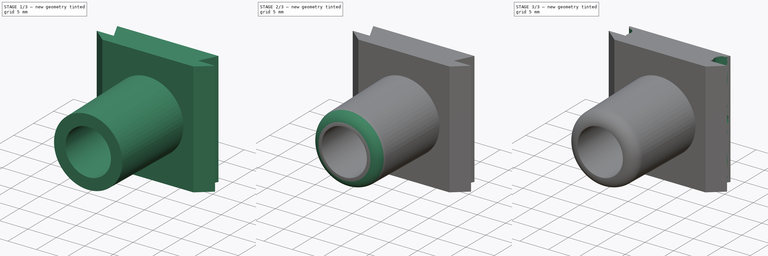
[diagram: build sequence overview — one tinted view per stage of 3, left to right]
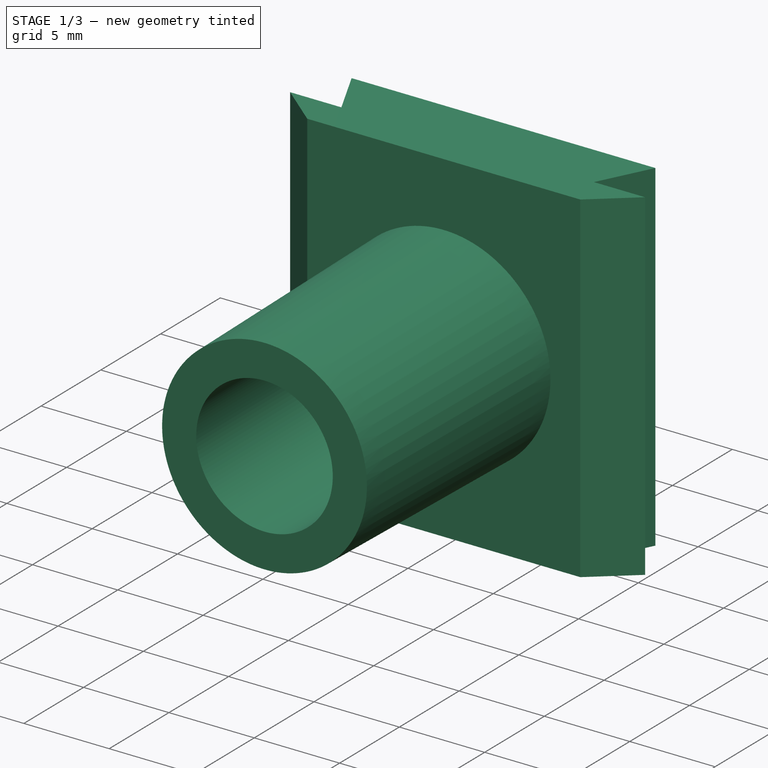
[diagram: stage 1 of 3 — iso view after this stage's code; geometry added in this stage tinted green]
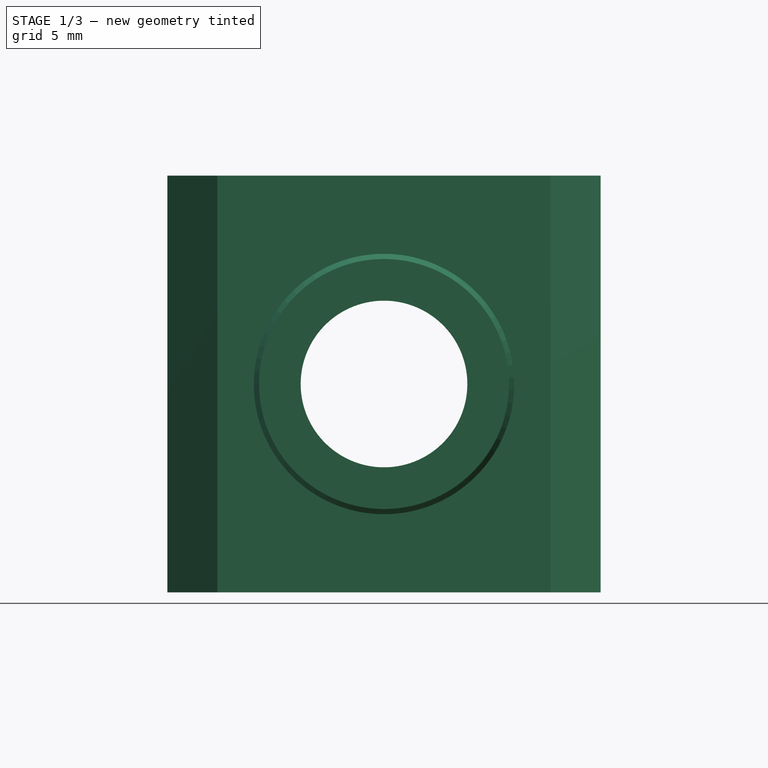
[diagram: stage 1 of 3 — front view after this stage's code; geometry added in this stage tinted green]
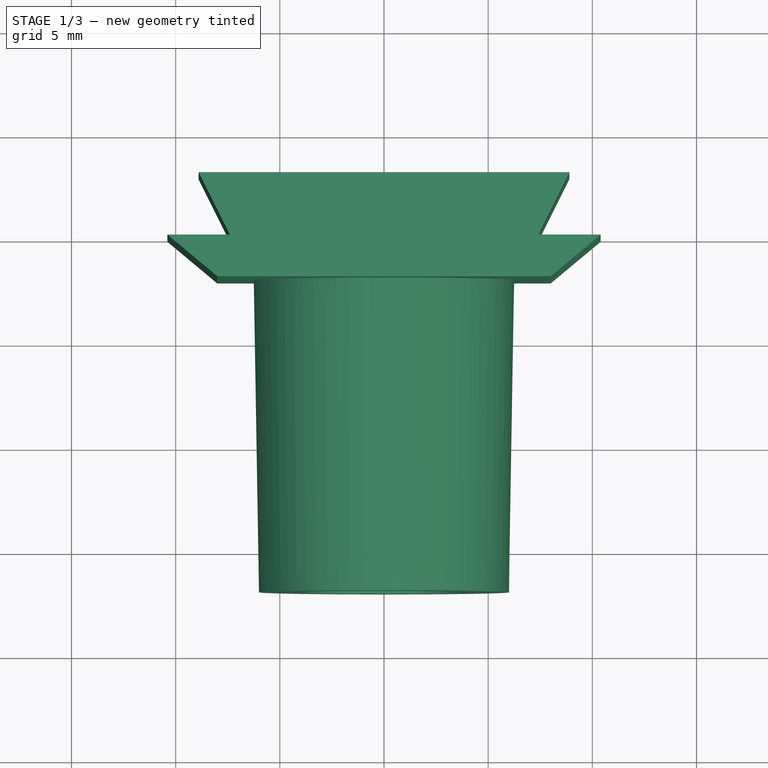
[diagram: stage 1 of 3 — top view after this stage's code; geometry added in this stage tinted green]
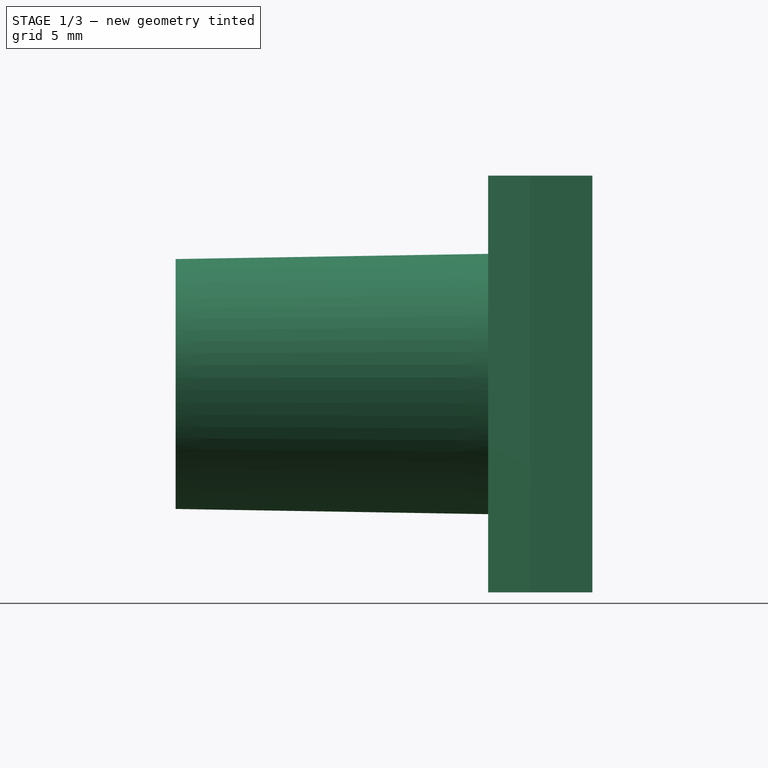
[diagram: stage 1 of 3 — right view after this stage's code; geometry added in this stage tinted green]
FCSTD DOCUMENT  (FreeCAD 0.18R4 (GitTag))
Label: V2_Connector_tube12mm
License: All rights reserved
LicenseURL: http://en.wikipedia.org/wiki/All_rights_reserved
objects: Sketcher::SketchObject×5, PartDesign::Plane×3, PartDesign::Pocket×2, PartDesign::Mirrored×2, PartDesign::Pad×1, PartDesign::CoordinateSystem×1, PartDesign::Revolution×1, PartDesign::Fillet×1, PartDesign::Groove×1, PartDesign::Body×1
note: 23 computed .brp shape members not serialized (recipe doc carries the construction recipe); baked Part::Feature solids carry a one-line shape summary decoded from their .brp

FEATURE [Sketcher::SketchObject] Sketch019
  MapMode = 5
  Placement = pos=(0,0,20) rot=(0,0,1;0rad)
  sketch-geometry (8):
    g0: LineSegment StartX=-8.9 StartY=3 StartZ=0 EndX=8.9 EndY=3 EndZ=0
    g1: LineSegment StartX=8.9 StartY=3 StartZ=0 EndX=7.4 EndY=0 EndZ=0
    g2: LineSegment StartX=7.4 StartY=0 StartZ=0 EndX=10.4 EndY=0 EndZ=0
    g3: LineSegment StartX=10.4 StartY=0 StartZ=0 EndX=8 EndY=-2 EndZ=0
    g4: LineSegment StartX=8 StartY=-2 StartZ=0 EndX=-8 EndY=-2 EndZ=0
    g5: LineSegment StartX=-8 StartY=-2 StartZ=0 EndX=-10.4 EndY=0 EndZ=0
    g6: LineSegment StartX=-10.4 StartY=0 StartZ=0 EndX=-7.4 EndY=0 EndZ=0
    g7: LineSegment StartX=-7.4 StartY=0 StartZ=0 EndX=-8.9 EndY=3 EndZ=0
  constraints (23):
    c: Coincident(g0,g1)
    c: Coincident(g1,g2)
    c: Coincident(g2,g3)
    c: Coincident(g3,g4)
    c: Coincident(g4,g5)
    c: Coincident(g5,g6)
    c: Coincident(g6,g7)
    c: Coincident(g7,g0)
    c: Horizontal(g0)
    c: Horizontal(g2)
    c: Horizontal(g6)
    c: DistanceX(g0,g0) = 17.8
    c: DistanceX(g6,g1) = 14.8
    c: Equal(g7,g1)
    c: Equal(g6,g2)
    c: DistanceY(g6,g0) = 3
    c: Horizontal(g1,g6)
    c: DistanceX(g6,g6) = 3
    c: DistanceY(g4,g6) = 2
    c: Equal(g5,g3)
    c: DistanceX(g4,g4) = 16
    c: Horizontal(g1,g-1)
    c: Symmetric(g4,g3,g-2)
FEATURE [PartDesign::Pad] Pad003
  Length = 20
  Length2 = 100
  Placement = pos=(0,0,20) rot=(0,0,1;0rad)
  Profile = -> Sketch019
  Reversed = true
  Type = 0
FEATURE [PartDesign::CoordinateSystem] Local_CS
  AttacherType = Attacher::AttachEngine3D
  MapMode = 45
  Placement = pos=(-2e-16,-2,10) rot=(-1,0,0;1.5708rad)
  Support = -> [Pad003]
FEATURE [PartDesign::Plane] DatumPlane
  AttachmentOffset = pos=(0,-18,0) rot=(0,0,1;0rad)
  Length = 25.796
  MapMode = 3
  Placement = pos=(-2e-16,-20,10) rot=(0,0,1;0rad)
  ResizeMode = 0
  Support = -> [Local_CS]
  Width = 34.996
FEATURE [Sketcher::SketchObject] Sketch020
  MapMode = 5
  Placement = pos=(0,-2,20) rot=(1,0,0;1.5708rad)
  Support = -> [Pad003]
  sketch-geometry (1):
    g0: Circle CenterX=0 CenterY=-10 CenterZ=0 NormalX=0 NormalY=0 NormalZ=1 AngleXU=0 Radius=4
  constraints (3):
    c: Radius(g0) = 4
    c: DistanceY(g0) = -10
    c: PointOnObject(g0,g-2)
FEATURE [PartDesign::Pocket] Pocket
  BaseFeature = -> Pad003
  Length = 6
  Length2 = 100
  Placement = pos=(0,0,20) rot=(0,0,1;0rad)
  Profile = -> Sketch020
  Type = 0
FEATURE [Sketcher::SketchObject] Sketch
  ExternalGeometry = -> [Pocket]
  MapMode = 5
  Placement = pos=(-2e-16,-20,10) rot=(0,0,1;0rad)
  Support = -> [DatumPlane]
  sketch-geometry (4):
    g0: LineSegment StartX=-6.25 StartY=18 StartZ=0 EndX=-6 EndY=3 EndZ=0
    g1: LineSegment StartX=-4 StartY=18 StartZ=0 EndX=-4 EndY=3 EndZ=0
    g2: LineSegment StartX=-6.25 StartY=18 StartZ=0 EndX=-4 EndY=18 EndZ=0
    g3: LineSegment StartX=-6 StartY=3 StartZ=0 EndX=-4 EndY=3 EndZ=0
  constraints (11):
    c: Vertical(g1)
    c: Coincident(g2,g0)
    c: Coincident(g1,g2)
    c: DistanceX(g2,g2) = 2.25
    c: DistanceY(g1,g1) = 15
    c: Coincident(g3,g0)
    c: Coincident(g1,g3)
    c: Horizontal(g3)
    c: DistanceX(g3,g3) = 2
    c: Tangent(g-3,g2)
    c: DistanceX(g1,g-1) = 4
FEATURE [PartDesign::Revolution] Revolution
  Angle = 360
  Axis = (0,1,2e-16)
  Base = (-2e-16,-20,10)
  BaseFeature = -> Pocket
  Placement = pos=(0,0,20) rot=(0,0,1;0rad)
  Profile = -> Sketch
  ReferenceAxis = -> Sketch [V_Axis]
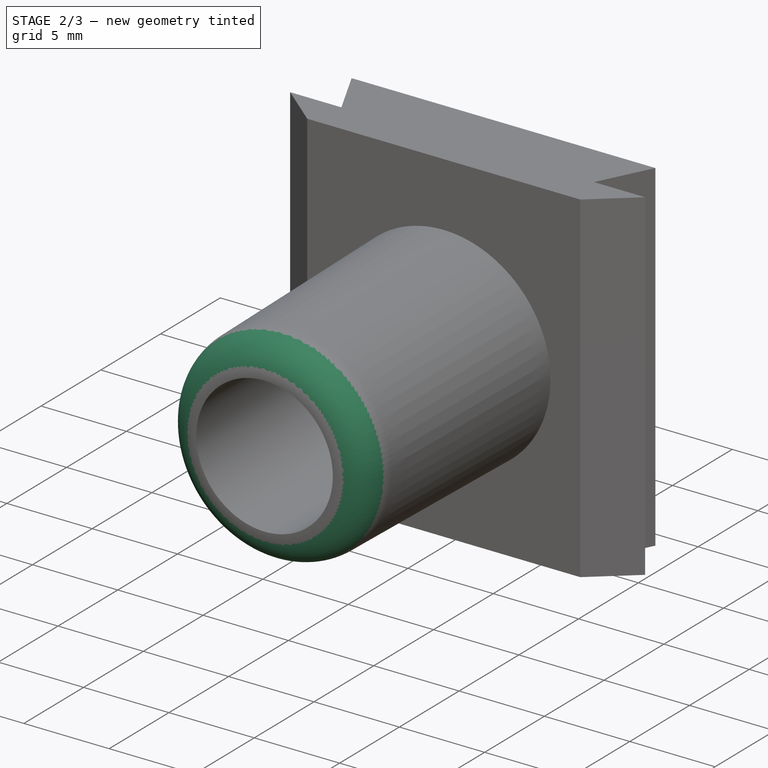
[diagram: stage 2 of 3 — iso view after this stage's code; geometry added in this stage tinted green]
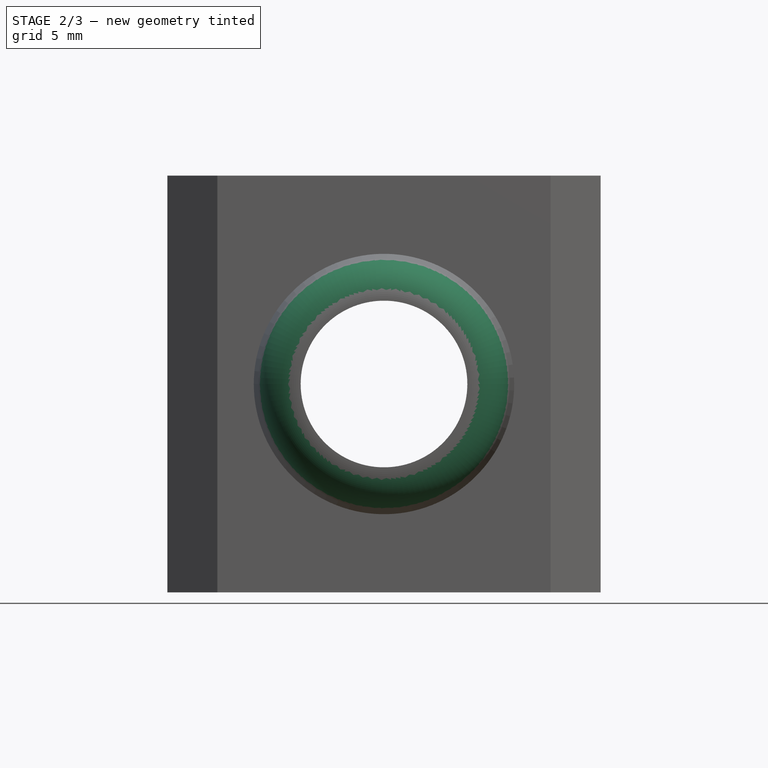
[diagram: stage 2 of 3 — front view after this stage's code; geometry added in this stage tinted green]
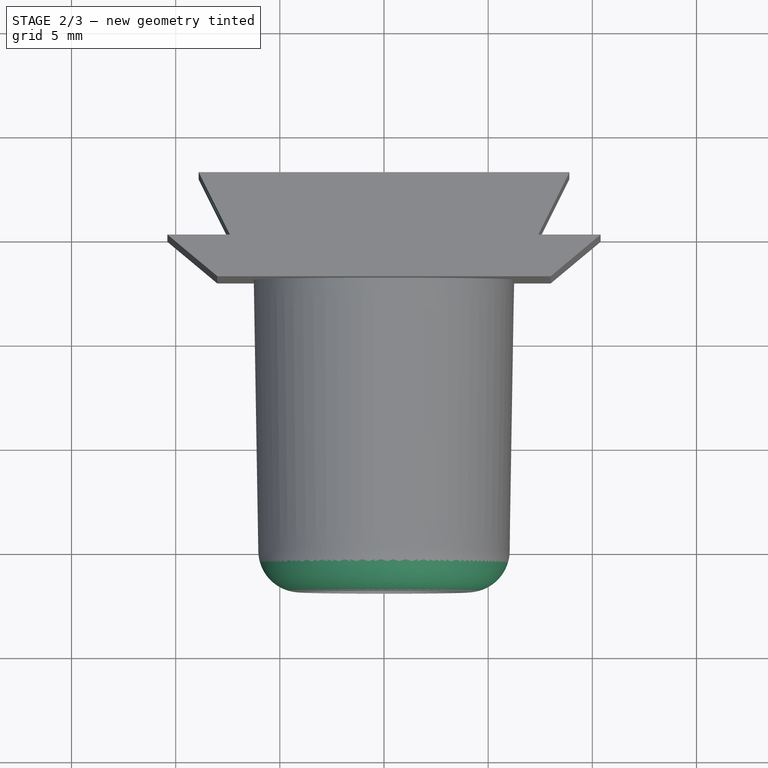
[diagram: stage 2 of 3 — top view after this stage's code; geometry added in this stage tinted green]
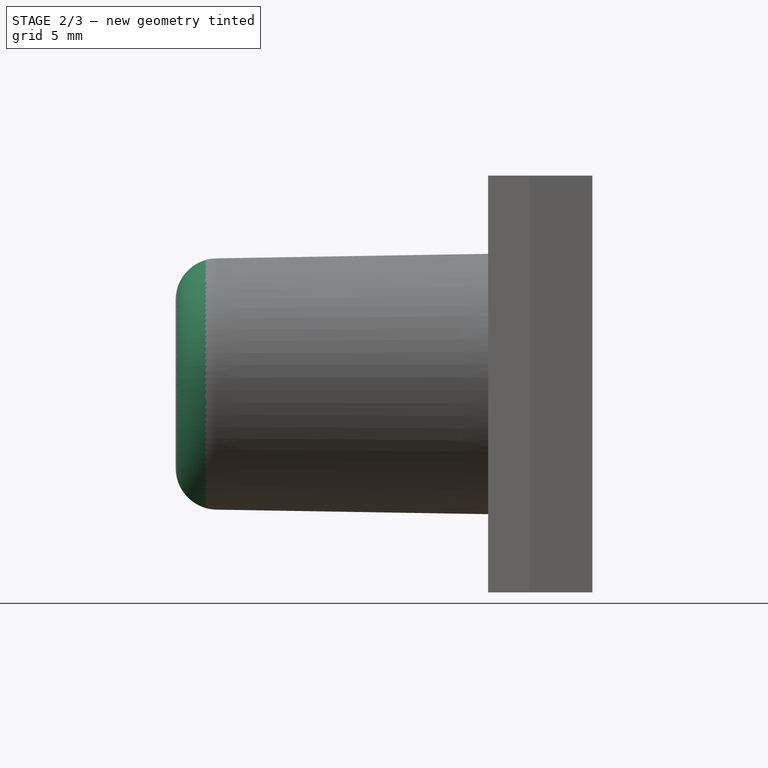
[diagram: stage 2 of 3 — right view after this stage's code; geometry added in this stage tinted green]
FEATURE [PartDesign::Fillet] Fillet
  Base = -> Revolution [Edge32]
  BaseFeature = -> Revolution
  Placement = pos=(0,0,20) rot=(0,0,1;0rad)
  Radius = 2
FEATURE [PartDesign::Plane] DatumPlane001
  AttachmentOffset = pos=(0,-10,0) rot=(1,0,0;1.5708rad)
  Length = 39.8586
  MapMode = 5
  Placement = pos=(-5.92,-2.96,10) rot=(0.850651,-0.525731,0;3.14159rad)
  ResizeMode = 0
  Support = -> [Fillet]
  Width = 37.0859
FEATURE [Sketcher::SketchObject] Sketch021
  ExternalGeometry = -> [Fillet]
  MapMode = 5
  Placement = pos=(-5.92,-2.96,10) rot=(0.850651,-0.525731,0;3.14159rad)
  Support = -> [DatumPlane001]
  sketch-geometry (9):
    g0: LineSegment StartX=-6.40938 StartY=-1.78e-14 StartZ=0 EndX=-4.90938 EndY=-1.78e-14 EndZ=0
    g1: LineSegment StartX=-4.90938 StartY=-1.78e-14 StartZ=0 EndX=-4.90938 EndY=-1.3 EndZ=0
    g2-g5: Circle [constr] x4 (B-spline internal-alignment scaffolding for g6; pole/knot coordinates omitted)
    g6: BSplineCurve PolesCount=4 KnotsCount=2 Degree=3 IsPeriodic=0
    g7: GeomPoint [constr] X=-6.40938 Y=-1.78e-14 Z=0
    g8: GeomPoint [constr] X=-4.90938 Y=-1.3 Z=0
  constraints (20):
    c: Horizontal(g0)
    c: Coincident(g0,g1)
    c: Vertical(g1)
    c: DistanceX(g0,g0) = 1.5
    c: DistanceY(g1,g1) = 1.3
    c: Coincident(g6,g0)
    c: Radius(g2) = 0.1
    c: Equal(g2,g3)
    c: Equal(g2,g4)
    c: Equal(g2,g5)
    c: Coincident(g6,g1)
    c: InternalAlignment(g2-g5 -> g6) x4
    c: InternalAlignment(g7,g6)
    c: InternalAlignment(g8,g6)
    c: Horizontal(g1,g4)
    c: Vertical(g3,g4)
    c: DistanceY(g4,g3) = 0.6
    c: DistanceX(g3,g0) = 0.75
    c: DistanceX(g0,g-3) = 1.6
    c: DistanceY(g0,g-3) = 0
FEATURE [PartDesign::Groove] Groove
  Angle = 360
  Axis = (0.894427,0.447214,1e-16)
  Base = (-8.11554,1.43108,10)
  BaseFeature = -> Fillet
  Placement = pos=(0,0,20) rot=(0,0,1;0rad)
  Profile = -> Sketch021
  ReferenceAxis = -> Sketch021 [Edge2]
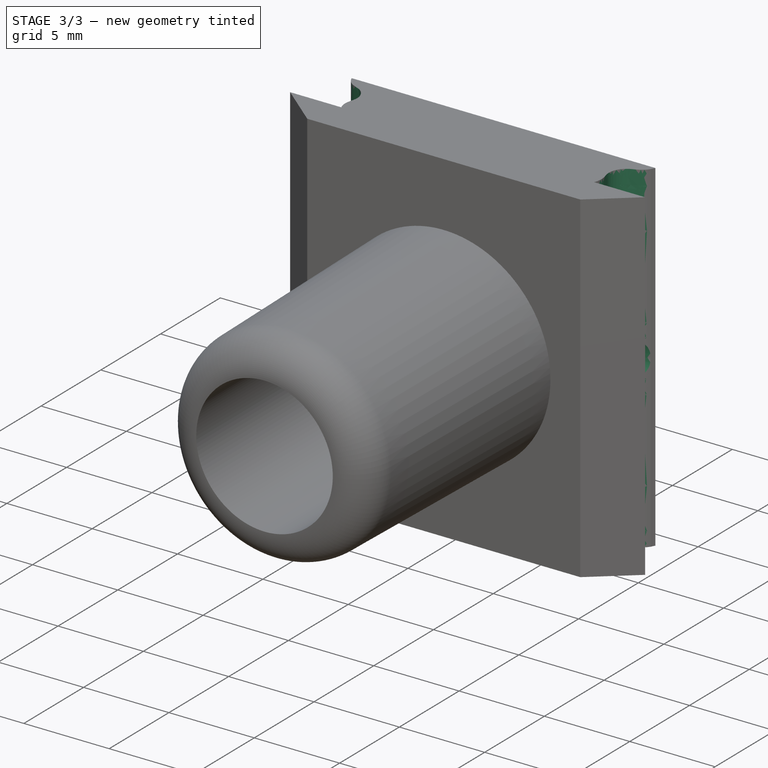
[diagram: stage 3 of 3 — iso view after this stage's code; geometry added in this stage tinted green]
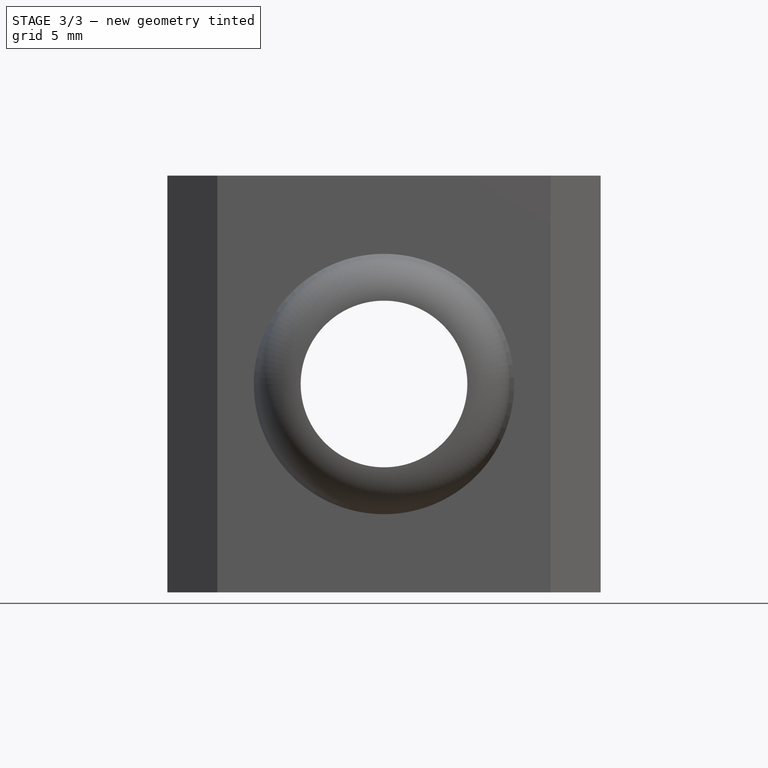
[diagram: stage 3 of 3 — front view after this stage's code; geometry added in this stage tinted green]
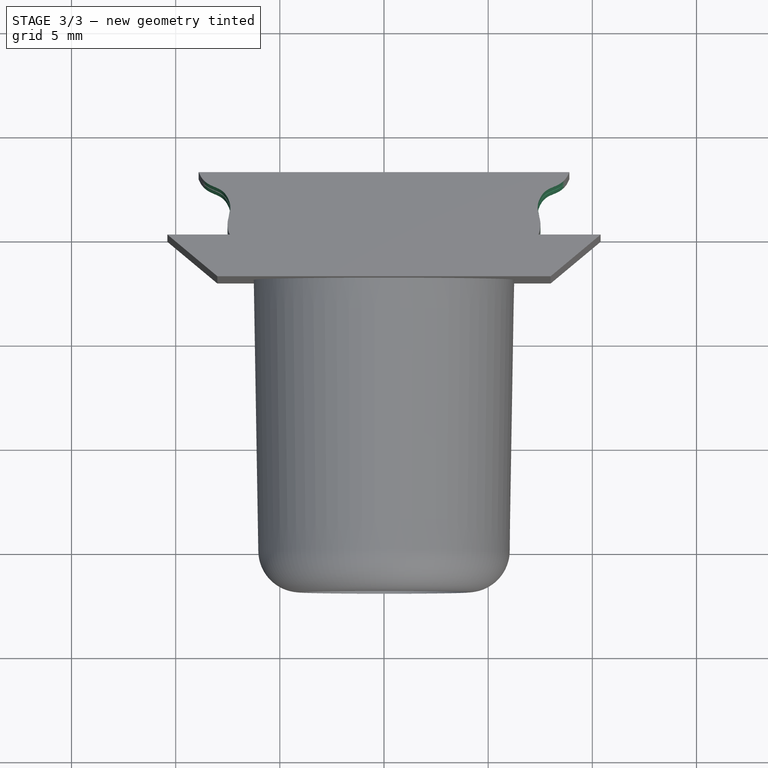
[diagram: stage 3 of 3 — top view after this stage's code; geometry added in this stage tinted green]
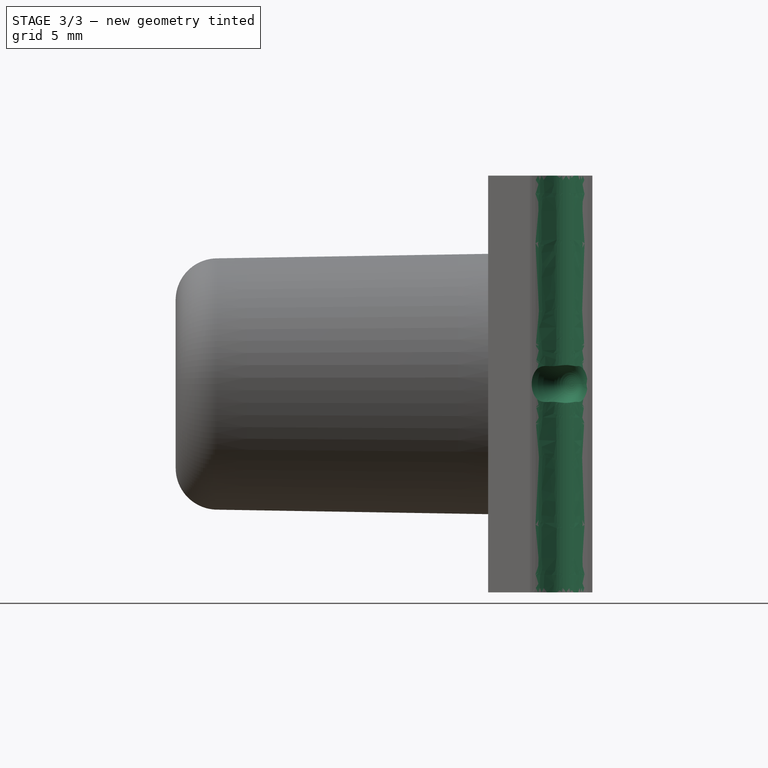
[diagram: stage 3 of 3 — right view after this stage's code; geometry added in this stage tinted green]
FEATURE [PartDesign::Mirrored] Mirrored
  BaseFeature = -> Groove
  MirrorPlane = -> YZ_Plane001
  Originals = -> [Groove]
  Placement = pos=(0,0,20) rot=(0,0,1;0rad)
FEATURE [PartDesign::Plane] DatumPlane002
  AttachmentOffset = pos=(0,0,0) rot=(1,0,0;1.5708rad)
  Length = 39.8586
  MapMode = 5
  Placement = pos=(5.92,-2.96,20) rot=(0.850651,0.525731,0;3.14159rad)
  ResizeMode = 0
  Support = -> [Mirrored]
  Width = 37.0859
FEATURE [Sketcher::SketchObject] Sketch022
  ExternalGeometry = -> [Mirrored]
  MapMode = 5
  Placement = pos=(5.92,-2.96,20) rot=(0.850651,0.525731,0;3.14159rad)
  Support = -> [DatumPlane002]
  sketch-geometry (16):
    g0: LineSegment StartX=3.40938 StartY=-9e-16 StartZ=0 EndX=4.90938 EndY=-9e-16 EndZ=0
    g1: LineSegment StartX=4.90938 StartY=-9e-16 StartZ=0 EndX=6.40938 EndY=-9e-16 EndZ=0
    g2-g5: Circle [constr] x4 (B-spline internal-alignment scaffolding for g6; pole/knot coordinates omitted)
    g6: BSplineCurve PolesCount=4 KnotsCount=2 Degree=3 IsPeriodic=0
    g7: GeomPoint [constr] X=3.40938 Y=-9e-16 Z=0
    g8: GeomPoint [constr] X=4.90938 Y=-0.7 Z=0
    g9-g12: Circle [constr] x4 (B-spline internal-alignment scaffolding for g13; pole/knot coordinates omitted)
    g13: BSplineCurve PolesCount=4 KnotsCount=2 Degree=3 IsPeriodic=0
    g14: GeomPoint [constr] X=6.40938 Y=-9e-16 Z=0
    g15: GeomPoint [constr] X=4.90938 Y=-0.7 Z=0
  constraints (34):
    c: Horizontal(g0)
    c: Coincident(g0,g1)
    c: Horizontal(g1)
    c: DistanceX(g1,g1) = 1.5
    c: DistanceX(g0,g0) = 1.5
    c: Radius(g2) = 0.08
    c: Equal(g2,g3)
    c: Equal(g2,g4)
    c: Equal(g2,g5)
    c: InternalAlignment(g2-g5 -> g6) x4
    c: InternalAlignment(g7,g6)
    c: InternalAlignment(g8,g6)
    c: Coincident(g13,g1)
    c: Radius(g9) = 0.09
    c: Equal(g9,g10)
    c: Equal(g9,g11)
    c: Equal(g9,g12)
    c: Coincident(g13,g6)
    c: InternalAlignment(g9-g12 -> g13) x4
    c: InternalAlignment(g14,g13)
    c: InternalAlignment(g15,g13)
    c: Vertical(g4,g3)
    c: Vertical(g11,g10)
    c: Horizontal(g4,g6)
    c: Horizontal(g6,g11)
    c: DistanceY(g4,g3) = 0.6
    c: DistanceY(g6,g0) = 0.7
    c: Coincident(g6,g0)
    c: DistanceX(g3,g0) = 0.75
    c: DistanceX(g0,g10) = 0.75
    c: DistanceX(g0,g6) = 1.5
    c: Horizontal(g3,g10)
    c: DistanceX(g-3,g0) = 1.6
    c: DistanceY(g0,g-3) = 0
FEATURE [PartDesign::Pocket] Pocket001
  BaseFeature = -> Mirrored
  Length = 20
  Length2 = 100
  Placement = pos=(0,0,20) rot=(0,0,1;0rad)
  Profile = -> Sketch022
  Reversed = true
  Type = 0
FEATURE [PartDesign::Mirrored] Mirrored001
  BaseFeature = -> Pocket001
  MirrorPlane = -> YZ_Plane001
  Originals = -> [Pocket001]
  Placement = pos=(0,0,20) rot=(0,0,1;0rad)
FEATURE [PartDesign::Body] Body001  label="Connector_Block"
  Group = -> [Sketch019,Pad003,Local_CS,DatumPlane,Sketch,Sketch020,Pocket,Revolution,Fillet,DatumPlane001,Sketch021,Groove,Mirrored,DatumPlane002,Sketch022,Pocket001,Mirrored001]
  Origin = -> Origin001
  Tip = -> Mirrored001
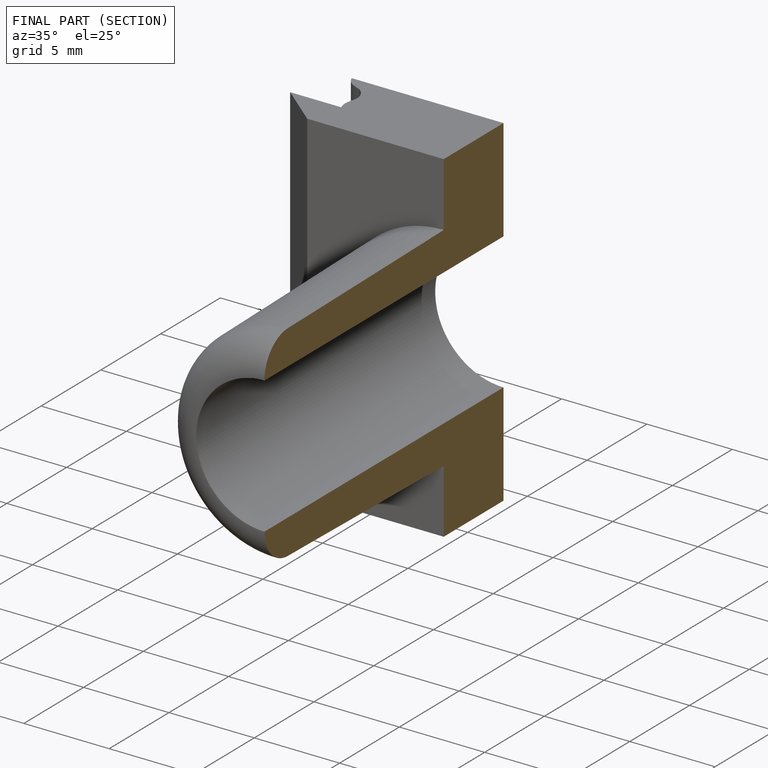
[diagram: finished part — half-section view (interior)]
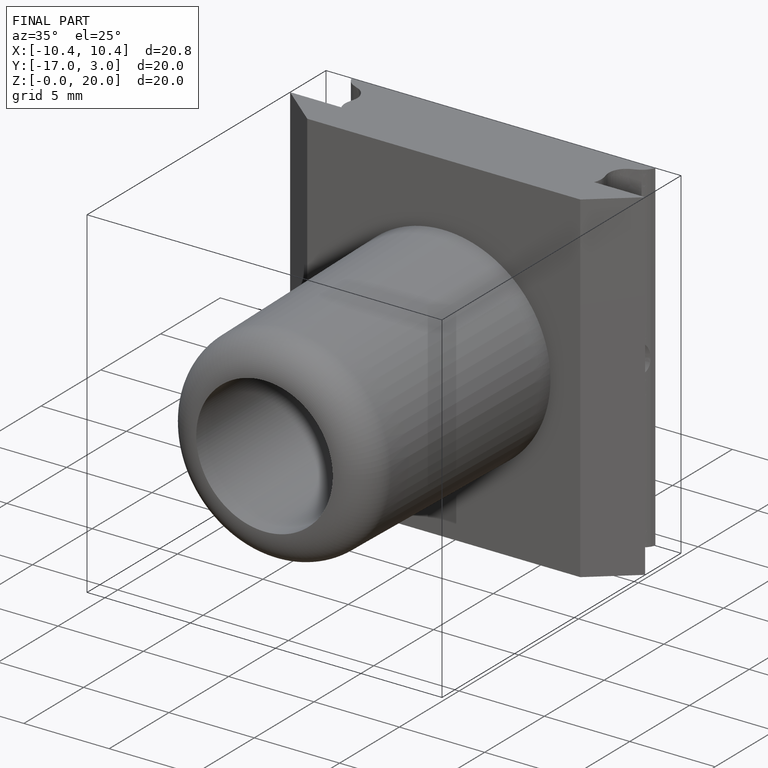
[diagram: finished part — iso view with bounding-box wireframe]
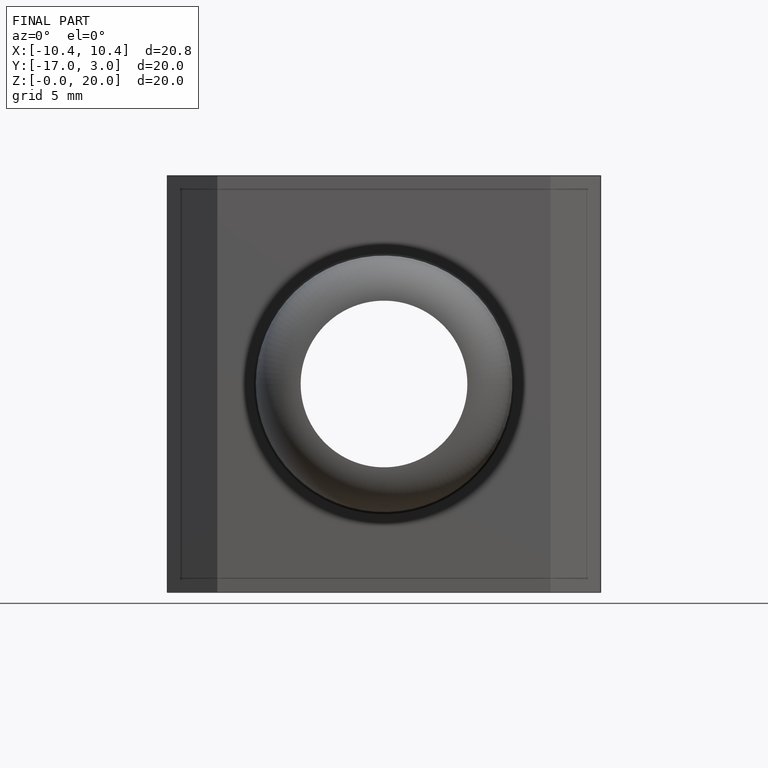
[diagram: finished part — front view with bounding-box wireframe]
